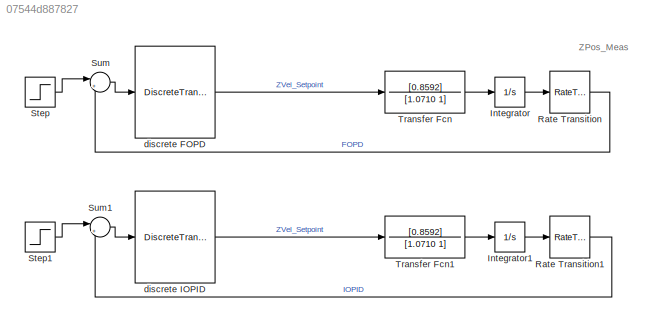
MODEL slx_07544d887827
KIND model
CONFIG AbsTol = auto
CONFIG EnableMultiTasking = off
CONFIG FixedStep = 0.01
CONFIG MaxStep = auto
CONFIG MinStep = auto
CONFIG RelTol = 1e-3
CONFIG SampleTimeConstraint = Unconstrained
CONFIG Solver = ode4
CONFIG SolverName = ode4
CONFIG StartTime = 0.0
CONFIG StopTime = 10.0
BLOCK [Integrator] Integrator
  Ports = [1, 1]
BLOCK [Integrator] Integrator1
  Ports = [1, 1]
BLOCK [RateTransition] Rate Transition
  OutPortSampleTime = 0.01
BLOCK [RateTransition] Rate Transition1
  OutPortSampleTime = 0.01
BLOCK [Step] Step
  SampleTime = 0.01
BLOCK [Step] Step1
  SampleTime = 0.01
BLOCK [Sum] Sum
  IconShape = round
  InputSameDT = off
  Inputs = |+-
  OutDataTypeStr = Inherit: Inherit via internal rule
  Ports = [2, 1]
  SaturateOnIntegerOverflow = off
BLOCK [Sum] Sum1
  IconShape = round
  InputSameDT = off
  Inputs = |+-
  OutDataTypeStr = Inherit: Inherit via internal rule
  Ports = [2, 1]
  SaturateOnIntegerOverflow = off
BLOCK [TransferFcn] Transfer Fcn
  Denominator = [1.0710 1]
  Numerator = [0.8592]
BLOCK [TransferFcn] Transfer Fcn1
  Denominator = [1.0710 1]
  Numerator = [0.8592]
BLOCK [DiscreteTransferFcn] discrete FOPD
  Denominator = [1,-2.94510699389959,3.17934233429781,-1.51000556757338,0.290497513211450,-0.0143972840431492]
  InputPortMap = u0
  Numerator = [0.946963179122833,-2.77792961698899,2.98392102212133,-1.40760552266944,0.267978964388861,-0.0129932830769816]
  Ports = [1, 1]
  SampleTime = 0.01
BLOCK [DiscreteTransferFcn] discrete IOPID
  Denominator = [1,0,-1]
  InputPortMap = u0
  Numerator = [299.580910000000,-595.998180000000,296.420910000000]
  Ports = [1, 1]
  SampleTime = 0.01
ANNOTATION (root): ZPos_Meas
LINE Integrator1:1 -> Rate Transition1:1
LINE Integrator:1 -> Rate Transition:1
LINE Rate Transition1:1 -> Sum1:2
LINE Rate Transition:1 -> Sum:2
LINE Step1:1 -> Sum1:1
LINE Step:1 -> Sum:1
LINE Sum1:1 -> discrete IOPID:1
LINE Sum:1 -> discrete FOPD:1
LINE Transfer Fcn1:1 -> Integrator1:1
LINE Transfer Fcn:1 -> Integrator:1
LINE discrete FOPD:1 -> Transfer Fcn:1
LINE discrete IOPID:1 -> Transfer Fcn1:1
